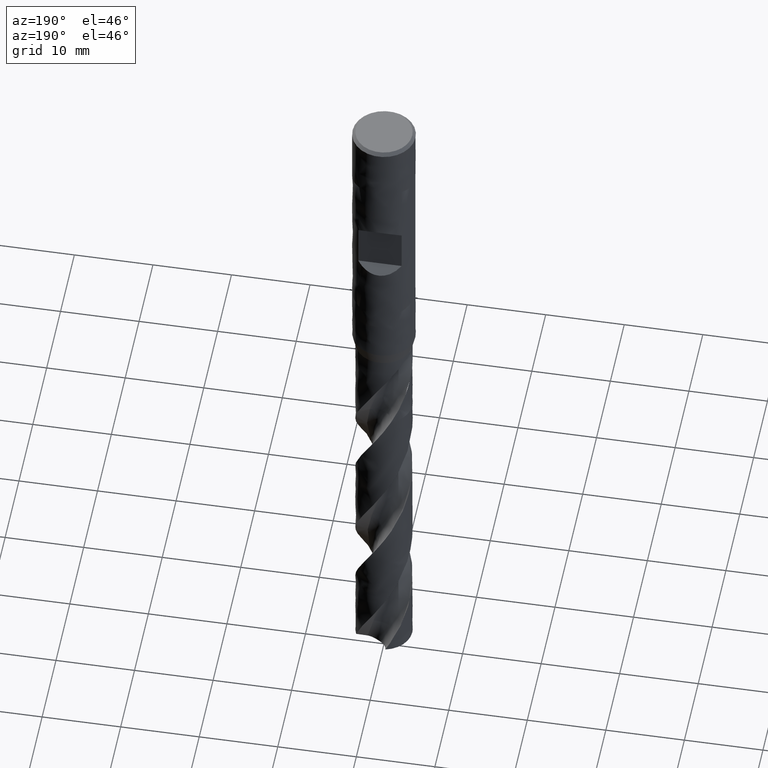
[diagram: clean part render]
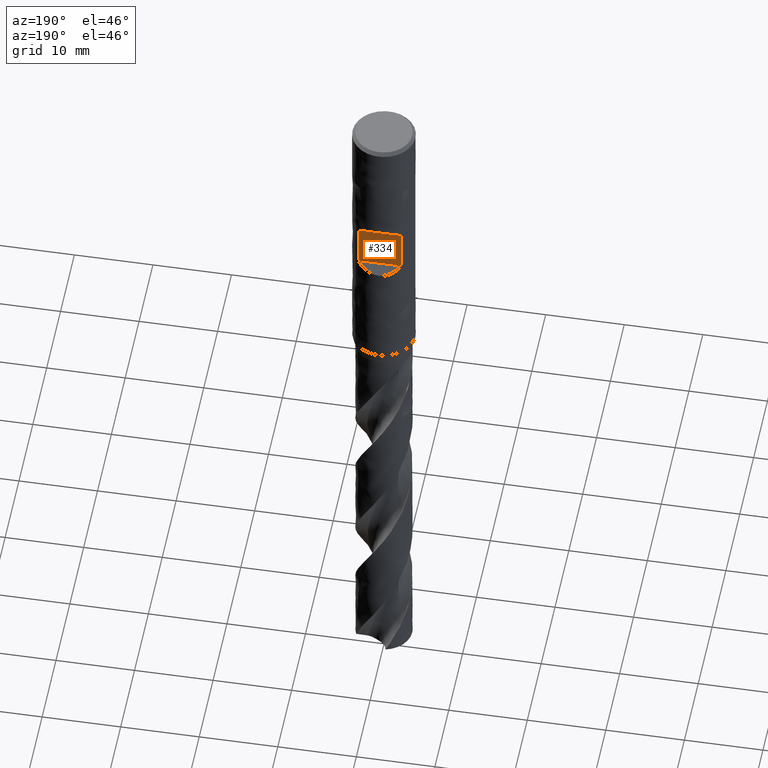
[diagram: same view with one face highlighted and labeled with its STEP entity id]
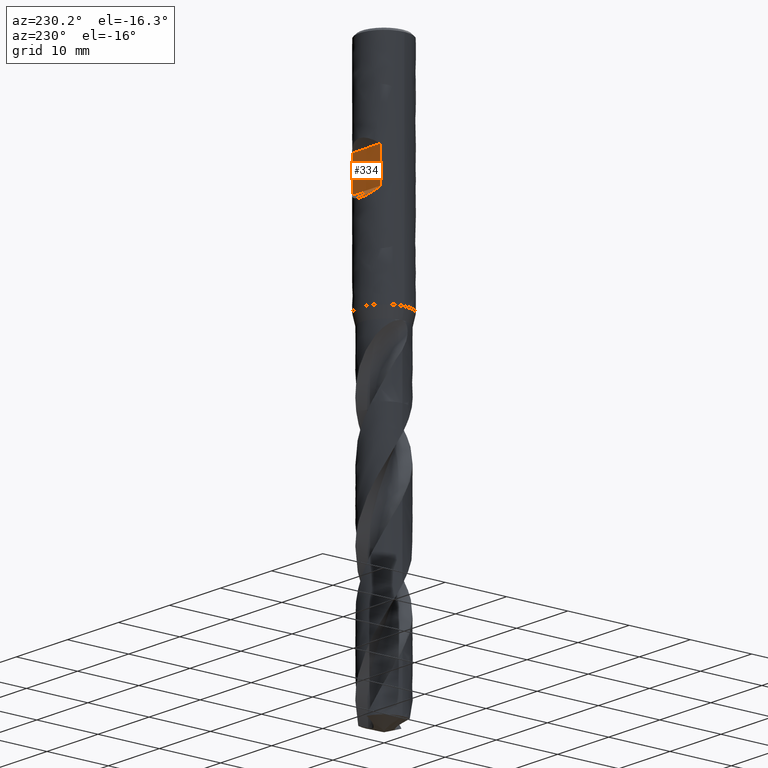
[diagram: same view with one face highlighted and labeled with its STEP entity id]
A machine part, auxiliary view. The second image highlights one B-rep face of the part: STEP entity #334.
A second angle (auxiliary view) of the same face is appended — the face is thin or edge-on in the first view.
In plain terms, the highlighted planar face has unit normal (0, 1, 0).
Its self-contained STEP definition (entity closure, byte-faithful):
#148 = VERTEX_POINT('', #149);
#149 = CARTESIAN_POINT('', (-2.75499546279118, 2.9, -15.25));
#150 = VERTEX_POINT('', #151);
#151 = CARTESIAN_POINT('', (2.75499546279118, 2.9, -15.25));
#224 = EDGE_CURVE('', #148, #225, #227, .T.);
#225 = VERTEX_POINT('', #226);
#226 = CARTESIAN_POINT('', (-2.75499546279118, 2.9, -20.75));
#227 = LINE('', #228, #229);
#228 = CARTESIAN_POINT('', (-2.75499546279118, 2.9, -15.25));
#229 = VECTOR('', #230, 5.5);
#230 = DIRECTION('', (-4.44089209850063E-16, 0., -5.5));
#233 = VERTEX_POINT('', #234);
#234 = CARTESIAN_POINT('', (2.75499546279118, 2.9, -20.75));
#310 = EDGE_CURVE('', #150, #233, #311, .T.);
#311 = LINE('', #312, #313);
#312 = CARTESIAN_POINT('', (2.75499546279118, 2.9, -15.25));
#313 = VECTOR('', #314, 5.5);
#314 = DIRECTION('', (0., 4.44089209850063E-16, -5.5));
#334 = ADVANCED_FACE('', (#335), #351, .T.);
#335 = FACE_OUTER_BOUND('', #336, .T.);
#336 = EDGE_LOOP('', (#337, #338, #344, #345));
#337 = ORIENTED_EDGE('', *, *, #310, .T.);
#338 = ORIENTED_EDGE('', *, *, #339, .T.);
#339 = EDGE_CURVE('', #233, #225, #340, .T.);
#340 = LINE('', #341, #342);
#341 = CARTESIAN_POINT('', (2.75499546279118, 2.9, -20.75));
#342 = VECTOR('', #343, 5.50999092558236);
#343 = DIRECTION('', (-5.50999092558236, 4.44089209850063E-16, 0.));
#344 = ORIENTED_EDGE('', *, *, #224, .F.);
#345 = ORIENTED_EDGE('', *, *, #346, .F.);
#346 = EDGE_CURVE('', #150, #148, #347, .T.);
#347 = LINE('', #348, #349);
#348 = CARTESIAN_POINT('', (2.75499546279118, 2.9, -15.25));
#349 = VECTOR('', #350, 5.50999092558236);
#350 = DIRECTION('', (-5.50999092558236, 4.44089209850063E-16, 0.));
#351 = PLANE('', #352);
#352 = AXIS2_PLACEMENT_3D('', #353, #354, #355);
#353 = CARTESIAN_POINT('', (4., 2.9, -20.75));
#354 = DIRECTION('', (0., 1., 8.07434927000114E-17));
#355 = DIRECTION('', (-1., 0., 0.));